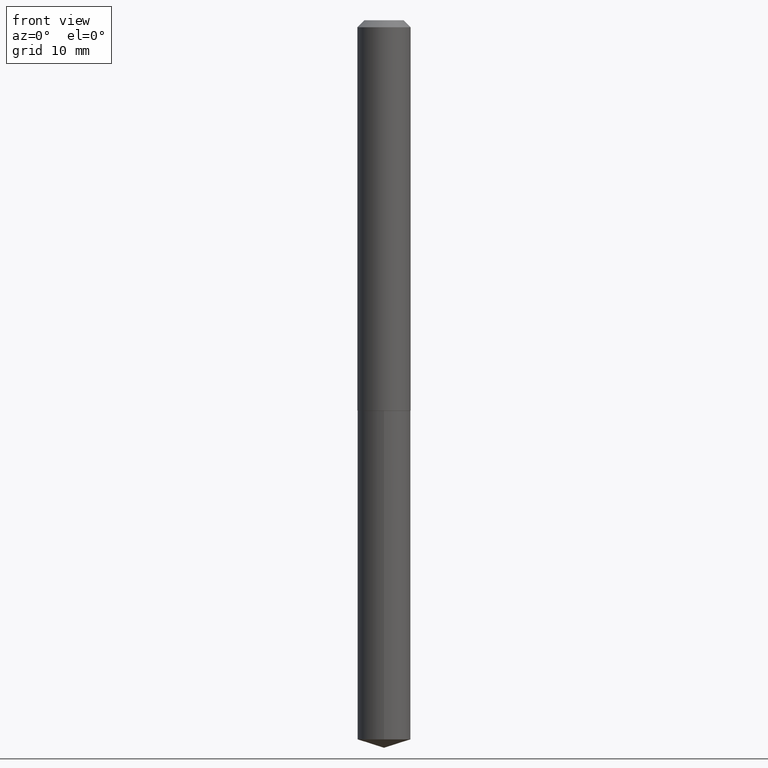
[diagram: clean part render]
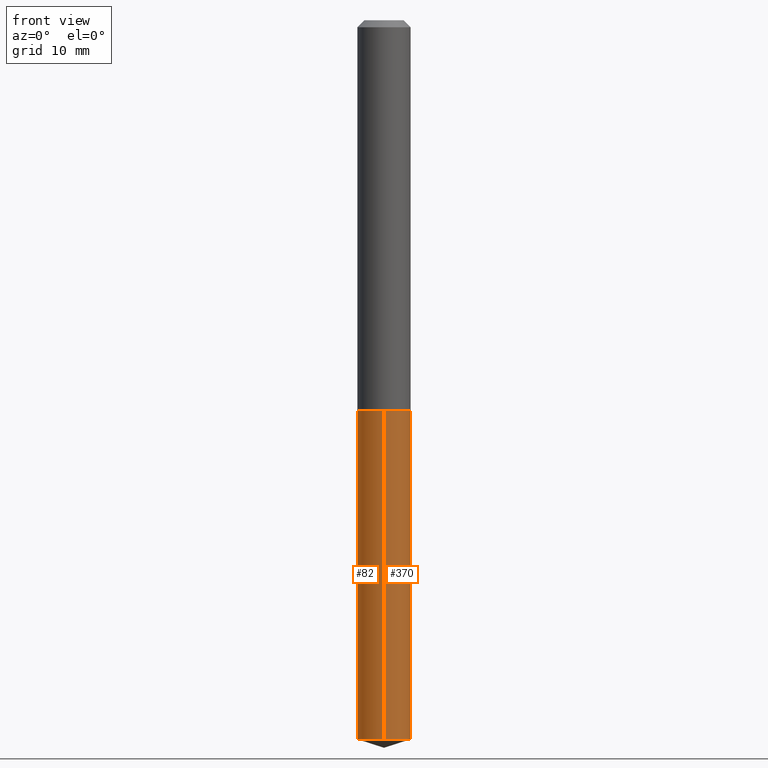
[diagram: same view with one multi-face feature highlighted, each face labeled with its STEP entity id]
A machine part, front view. The highlighted faces form ONE feature: a constant-radius fillet chain: 2 tangent blend faces with common blend radius 2.9997 mm. The faces share edges in the B-rep.
Their STEP definitions:
[1] entity #82 (Cylinder):
#2 = LINE ( 'NONE', #189, #233 ) ;
#9 = DIRECTION ( 'NONE',  ( -2.438704253266906551E-29, 3.501168563636492890E-15, 1.000000000000000000 ) ) ;
#13 = VECTOR ( 'NONE', #275, 39.37007874015748143 ) ;
#22 = EDGE_CURVE ( 'NONE', #297, #274, #278, .T. ) ;
#43 = CIRCLE ( 'NONE', #379, 0.1181000000000000105 ) ;
#62 = EDGE_CURVE ( 'NONE', #336, #144, #2, .T. ) ;
#65 = ORIENTED_EDGE ( 'NONE', *, *, #62, .T. ) ;
#80 = CARTESIAN_POINT ( 'NONE',  ( 7.793776988633051175E-29, -1.115566999526233657E-14, -3.191063213033392021 ) ) ;
#82 = ADVANCED_FACE ( 'NONE', ( #305 ), #103, .T. ) ;
#92 = EDGE_LOOP ( 'NONE', ( #330, #192, #65, #295 ) ) ;
#103 = CYLINDRICAL_SURFACE ( 'NONE', #129, 0.1180999999999999966 ) ;
#104 = CARTESIAN_POINT ( 'NONE',  ( 8.391509709327565901E-16, 0.1180999999999939737, -1.732200000000000628 ) ) ;
#106 = DIRECTION ( 'NONE',  ( -6.982962677686265922E-15, -1.000000000000000000, 4.626330217890369336E-15 ) ) ;
#129 = AXIS2_PLACEMENT_3D ( 'NONE', #254, #353, #266 ) ;
#134 = EDGE_CURVE ( 'NONE', #274, #144, #372, .T. ) ;
#138 = EDGE_CURVE ( 'NONE', #297, #336, #43, .T. ) ;
#144 = VERTEX_POINT ( 'NONE', #374 ) ;
#164 = DIRECTION ( 'NONE',  ( -2.438704253266906271E-29, 3.501168563636492890E-15, 1.000000000000000000 ) ) ;
#166 = CARTESIAN_POINT ( 'NONE',  ( -8.246878922346700668E-16, -0.1181000000000111683, -3.191063213033391577 ) ) ;
#189 = CARTESIAN_POINT ( 'NONE',  ( -8.246878922347056641E-16, -0.1181000000000060474, -1.732199999999999518 ) ) ;
#192 = ORIENTED_EDGE ( 'NONE', *, *, #138, .T. ) ;
#228 = DIRECTION ( 'NONE',  ( -6.982962677686265922E-15, -1.000000000000000000, 4.626330217890369336E-15 ) ) ;
#233 = VECTOR ( 'NONE', #164, 39.37007874015748143 ) ;
#238 = CARTESIAN_POINT ( 'NONE',  ( 4.236041066073894168E-29, -6.047943975144097566E-15, -1.732200000000000184 ) ) ;
#254 = CARTESIAN_POINT ( 'NONE',  ( 4.236041066073894168E-29, -6.047943975144097566E-15, -1.732200000000000184 ) ) ;
#266 = DIRECTION ( 'NONE',  ( -6.982962677686265922E-15, -1.000000000000000000, 4.626330217890369336E-15 ) ) ;
#274 = VERTEX_POINT ( 'NONE', #104 ) ;
#275 = DIRECTION ( 'NONE',  ( -2.438704253266906271E-29, 3.501168563636492890E-15, 1.000000000000000000 ) ) ;
#278 = LINE ( 'NONE', #341, #13 ) ;
#287 = AXIS2_PLACEMENT_3D ( 'NONE', #238, #9, #106 ) ;
#295 = ORIENTED_EDGE ( 'NONE', *, *, #134, .F. ) ;
#297 = VERTEX_POINT ( 'NONE', #340 ) ;
#305 = FACE_OUTER_BOUND ( 'NONE', #92, .T. ) ;
#330 = ORIENTED_EDGE ( 'NONE', *, *, #22, .F. ) ;
#336 = VERTEX_POINT ( 'NONE', #166 ) ;
#340 = CARTESIAN_POINT ( 'NONE',  ( 8.391509709327560971E-16, 0.1180999999999888250, -3.191063213033392465 ) ) ;
#341 = CARTESIAN_POINT ( 'NONE',  ( 8.391509709327204997E-16, 0.1180999999999939598, -1.732200000000000628 ) ) ;
#353 = DIRECTION ( 'NONE',  ( -2.438704253266906551E-29, 3.501168563636492890E-15, 1.000000000000000000 ) ) ;
#354 = DIRECTION ( 'NONE',  ( -2.438704253266906551E-29, 3.501168563636492890E-15, 1.000000000000000000 ) ) ;
#372 = CIRCLE ( 'NONE', #287, 0.1180999999999999966 ) ;
#374 = CARTESIAN_POINT ( 'NONE',  ( -8.246878922347056641E-16, -0.1181000000000060474, -1.732199999999999518 ) ) ;
#379 = AXIS2_PLACEMENT_3D ( 'NONE', #80, #354, #228 ) ;
[2] entity #370 (Cylinder):
#2 = LINE ( 'NONE', #189, #233 ) ;
#13 = VECTOR ( 'NONE', #275, 39.37007874015748143 ) ;
#22 = EDGE_CURVE ( 'NONE', #297, #274, #278, .T. ) ;
#26 = EDGE_LOOP ( 'NONE', ( #74, #269, #156, #247 ) ) ;
#36 = DIRECTION ( 'NONE',  ( -6.982962677686265922E-15, -1.000000000000000000, 4.626330217890369336E-15 ) ) ;
#40 = DIRECTION ( 'NONE',  ( -6.982962677686265922E-15, -1.000000000000000000, 4.626330217890369336E-15 ) ) ;
#62 = EDGE_CURVE ( 'NONE', #336, #144, #2, .T. ) ;
#74 = ORIENTED_EDGE ( 'NONE', *, *, #270, .T. ) ;
#75 = CARTESIAN_POINT ( 'NONE',  ( 7.793776988633051175E-29, -1.115566999526233657E-14, -3.191063213033392021 ) ) ;
#78 = CARTESIAN_POINT ( 'NONE',  ( 4.236041066073894168E-29, -6.047943975144097566E-15, -1.732200000000000184 ) ) ;
#98 = AXIS2_PLACEMENT_3D ( 'NONE', #193, #308, #40 ) ;
#104 = CARTESIAN_POINT ( 'NONE',  ( 8.391509709327565901E-16, 0.1180999999999939737, -1.732200000000000628 ) ) ;
#127 = DIRECTION ( 'NONE',  ( -6.982962677686265922E-15, -1.000000000000000000, 4.626330217890369336E-15 ) ) ;
#144 = VERTEX_POINT ( 'NONE', #374 ) ;
#156 = ORIENTED_EDGE ( 'NONE', *, *, #230, .F. ) ;
#164 = DIRECTION ( 'NONE',  ( -2.438704253266906271E-29, 3.501168563636492890E-15, 1.000000000000000000 ) ) ;
#166 = CARTESIAN_POINT ( 'NONE',  ( -8.246878922346700668E-16, -0.1181000000000111683, -3.191063213033391577 ) ) ;
#189 = CARTESIAN_POINT ( 'NONE',  ( -8.246878922347056641E-16, -0.1181000000000060474, -1.732199999999999518 ) ) ;
#193 = CARTESIAN_POINT ( 'NONE',  ( 4.236041066073894168E-29, -6.047943975144097566E-15, -1.732200000000000184 ) ) ;
#198 = DIRECTION ( 'NONE',  ( -2.438704253266906551E-29, 3.501168563636492890E-15, 1.000000000000000000 ) ) ;
#215 = AXIS2_PLACEMENT_3D ( 'NONE', #78, #371, #36 ) ;
#230 = EDGE_CURVE ( 'NONE', #144, #274, #288, .T. ) ;
#233 = VECTOR ( 'NONE', #164, 39.37007874015748143 ) ;
#247 = ORIENTED_EDGE ( 'NONE', *, *, #62, .F. ) ;
#251 = FACE_OUTER_BOUND ( 'NONE', #26, .T. ) ;
#255 = CIRCLE ( 'NONE', #329, 0.1181000000000000105 ) ;
#269 = ORIENTED_EDGE ( 'NONE', *, *, #22, .T. ) ;
#270 = EDGE_CURVE ( 'NONE', #336, #297, #255, .T. ) ;
#274 = VERTEX_POINT ( 'NONE', #104 ) ;
#275 = DIRECTION ( 'NONE',  ( -2.438704253266906271E-29, 3.501168563636492890E-15, 1.000000000000000000 ) ) ;
#278 = LINE ( 'NONE', #341, #13 ) ;
#284 = CYLINDRICAL_SURFACE ( 'NONE', #215, 0.1180999999999999966 ) ;
#288 = CIRCLE ( 'NONE', #98, 0.1180999999999999966 ) ;
#297 = VERTEX_POINT ( 'NONE', #340 ) ;
#308 = DIRECTION ( 'NONE',  ( -2.438704253266906551E-29, 3.501168563636492890E-15, 1.000000000000000000 ) ) ;
#329 = AXIS2_PLACEMENT_3D ( 'NONE', #75, #198, #127 ) ;
#336 = VERTEX_POINT ( 'NONE', #166 ) ;
#340 = CARTESIAN_POINT ( 'NONE',  ( 8.391509709327560971E-16, 0.1180999999999888250, -3.191063213033392465 ) ) ;
#341 = CARTESIAN_POINT ( 'NONE',  ( 8.391509709327204997E-16, 0.1180999999999939598, -1.732200000000000628 ) ) ;
#370 = ADVANCED_FACE ( 'NONE', ( #251 ), #284, .T. ) ;
#371 = DIRECTION ( 'NONE',  ( -2.438704253266906551E-29, 3.501168563636492890E-15, 1.000000000000000000 ) ) ;
#374 = CARTESIAN_POINT ( 'NONE',  ( -8.246878922347056641E-16, -0.1181000000000060474, -1.732199999999999518 ) ) ;